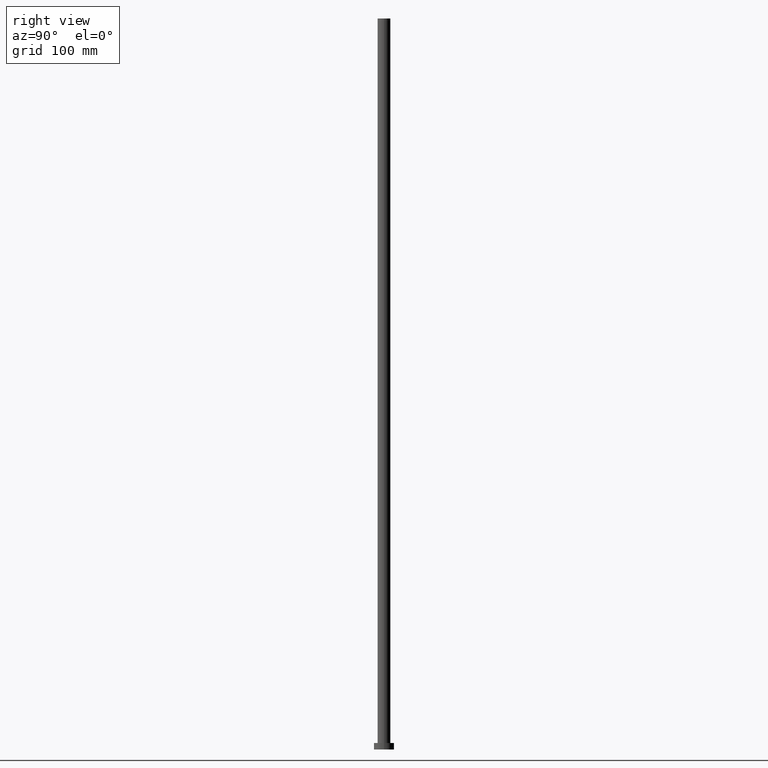
[diagram: clean part render]
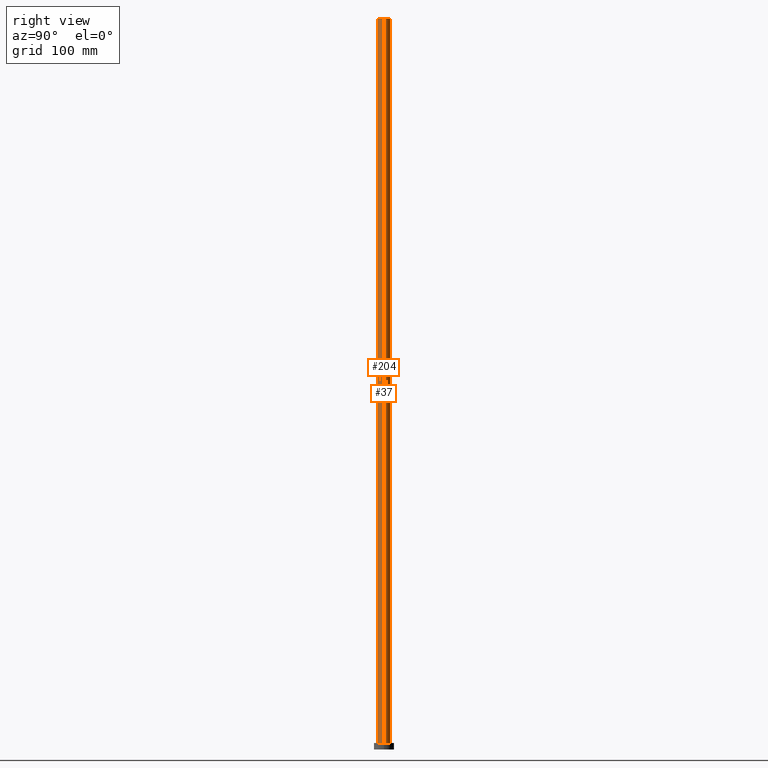
[diagram: same view with one multi-face feature highlighted, each face labeled with its STEP entity id]
A machine part, right view. The highlighted faces form ONE feature: a constant-radius fillet chain: 2 tangent blend faces with common blend radius 7 mm. The faces share edges in the B-rep.
Their STEP definitions:
[1] entity #37 (Cylinder):
#11 = FACE_OUTER_BOUND ( 'NONE', #71, .T. ) ;
#20 = CARTESIAN_POINT ( 'NONE',  ( -7.000000000000000888, 0.000000000000000000, 800.0000000000000000 ) ) ;
#24 = ORIENTED_EDGE ( 'NONE', *, *, #101, .F. ) ;
#29 = DIRECTION ( 'NONE',  ( -0.000000000000000000, -0.000000000000000000, -1.000000000000000000 ) ) ;
#30 = AXIS2_PLACEMENT_3D ( 'NONE', #215, #112, #32 ) ;
#32 = DIRECTION ( 'NONE',  ( -1.000000000000000000, 0.000000000000000000, 0.000000000000000000 ) ) ;
#34 = ORIENTED_EDGE ( 'NONE', *, *, #178, .F. ) ;
#37 = ADVANCED_FACE ( 'NONE', ( #11 ), #212, .T. ) ;
#38 = DIRECTION ( 'NONE',  ( 1.000000000000000000, 0.000000000000000000, 0.000000000000000000 ) ) ;
#53 = VERTEX_POINT ( 'NONE', #113 ) ;
#66 = CIRCLE ( 'NONE', #161, 7.000000000000000888 ) ;
#69 = CIRCLE ( 'NONE', #213, 7.000000000000000888 ) ;
#71 = EDGE_LOOP ( 'NONE', ( #34, #199, #253, #24 ) ) ;
#76 = LINE ( 'NONE', #163, #119 ) ;
#93 = CARTESIAN_POINT ( 'NONE',  ( 7.000000000000000888, 8.572527594031474176E-16, 7.000000000000000000 ) ) ;
#101 = EDGE_CURVE ( 'NONE', #235, #197, #152, .T. ) ;
#112 = DIRECTION ( 'NONE',  ( -0.000000000000000000, -0.000000000000000000, -1.000000000000000000 ) ) ;
#113 = CARTESIAN_POINT ( 'NONE',  ( 7.000000000000000888, 8.572527594031474176E-16, 800.0000000000000000 ) ) ;
#118 = DIRECTION ( 'NONE',  ( 0.000000000000000000, 0.000000000000000000, 1.000000000000000000 ) ) ;
#119 = VECTOR ( 'NONE', #159, 1000.000000000000000 ) ;
#131 = CARTESIAN_POINT ( 'NONE',  ( -7.000000000000000888, 0.000000000000000000, 800.0000000000000000 ) ) ;
#143 = CARTESIAN_POINT ( 'NONE',  ( -7.000000000000000888, 0.000000000000000000, 7.000000000000000000 ) ) ;
#152 = LINE ( 'NONE', #131, #191 ) ;
#153 = EDGE_CURVE ( 'NONE', #154, #197, #66, .T. ) ;
#154 = VERTEX_POINT ( 'NONE', #93 ) ;
#159 = DIRECTION ( 'NONE',  ( -0.000000000000000000, -0.000000000000000000, -1.000000000000000000 ) ) ;
#161 = AXIS2_PLACEMENT_3D ( 'NONE', #162, #221, #183 ) ;
#162 = CARTESIAN_POINT ( 'NONE',  ( 0.000000000000000000, 0.000000000000000000, 7.000000000000000000 ) ) ;
#163 = CARTESIAN_POINT ( 'NONE',  ( 7.000000000000000888, 8.572527594031474176E-16, 800.0000000000000000 ) ) ;
#178 = EDGE_CURVE ( 'NONE', #53, #235, #69, .T. ) ;
#183 = DIRECTION ( 'NONE',  ( 1.000000000000000000, 0.000000000000000000, 0.000000000000000000 ) ) ;
#191 = VECTOR ( 'NONE', #29, 1000.000000000000000 ) ;
#197 = VERTEX_POINT ( 'NONE', #143 ) ;
#199 = ORIENTED_EDGE ( 'NONE', *, *, #232, .T. ) ;
#212 = CYLINDRICAL_SURFACE ( 'NONE', #30, 7.000000000000000888 ) ;
#213 = AXIS2_PLACEMENT_3D ( 'NONE', #223, #118, #38 ) ;
#215 = CARTESIAN_POINT ( 'NONE',  ( 0.000000000000000000, 0.000000000000000000, 800.0000000000000000 ) ) ;
#221 = DIRECTION ( 'NONE',  ( 0.000000000000000000, 0.000000000000000000, 1.000000000000000000 ) ) ;
#223 = CARTESIAN_POINT ( 'NONE',  ( 0.000000000000000000, 0.000000000000000000, 800.0000000000000000 ) ) ;
#232 = EDGE_CURVE ( 'NONE', #53, #154, #76, .T. ) ;
#235 = VERTEX_POINT ( 'NONE', #20 ) ;
#253 = ORIENTED_EDGE ( 'NONE', *, *, #153, .T. ) ;
[2] entity #204 (Cylinder):
#3 = DIRECTION ( 'NONE',  ( -1.000000000000000000, 0.000000000000000000, 0.000000000000000000 ) ) ;
#10 = ORIENTED_EDGE ( 'NONE', *, *, #101, .T. ) ;
#15 = DIRECTION ( 'NONE',  ( 1.000000000000000000, 0.000000000000000000, 0.000000000000000000 ) ) ;
#20 = CARTESIAN_POINT ( 'NONE',  ( -7.000000000000000888, 0.000000000000000000, 800.0000000000000000 ) ) ;
#29 = DIRECTION ( 'NONE',  ( -0.000000000000000000, -0.000000000000000000, -1.000000000000000000 ) ) ;
#35 = CIRCLE ( 'NONE', #114, 7.000000000000000888 ) ;
#41 = ORIENTED_EDGE ( 'NONE', *, *, #85, .F. ) ;
#47 = EDGE_CURVE ( 'NONE', #197, #154, #35, .T. ) ;
#52 = CIRCLE ( 'NONE', #79, 7.000000000000000888 ) ;
#53 = VERTEX_POINT ( 'NONE', #113 ) ;
#70 = DIRECTION ( 'NONE',  ( 0.000000000000000000, 0.000000000000000000, 1.000000000000000000 ) ) ;
#72 = DIRECTION ( 'NONE',  ( 1.000000000000000000, 0.000000000000000000, 0.000000000000000000 ) ) ;
#76 = LINE ( 'NONE', #163, #119 ) ;
#77 = AXIS2_PLACEMENT_3D ( 'NONE', #122, #220, #3 ) ;
#79 = AXIS2_PLACEMENT_3D ( 'NONE', #89, #70, #15 ) ;
#84 = CARTESIAN_POINT ( 'NONE',  ( 0.000000000000000000, 0.000000000000000000, 7.000000000000000000 ) ) ;
#85 = EDGE_CURVE ( 'NONE', #235, #53, #52, .T. ) ;
#89 = CARTESIAN_POINT ( 'NONE',  ( 0.000000000000000000, 0.000000000000000000, 800.0000000000000000 ) ) ;
#93 = CARTESIAN_POINT ( 'NONE',  ( 7.000000000000000888, 8.572527594031474176E-16, 7.000000000000000000 ) ) ;
#101 = EDGE_CURVE ( 'NONE', #235, #197, #152, .T. ) ;
#110 = ORIENTED_EDGE ( 'NONE', *, *, #47, .T. ) ;
#113 = CARTESIAN_POINT ( 'NONE',  ( 7.000000000000000888, 8.572527594031474176E-16, 800.0000000000000000 ) ) ;
#114 = AXIS2_PLACEMENT_3D ( 'NONE', #84, #175, #72 ) ;
#119 = VECTOR ( 'NONE', #159, 1000.000000000000000 ) ;
#122 = CARTESIAN_POINT ( 'NONE',  ( 0.000000000000000000, 0.000000000000000000, 800.0000000000000000 ) ) ;
#131 = CARTESIAN_POINT ( 'NONE',  ( -7.000000000000000888, 0.000000000000000000, 800.0000000000000000 ) ) ;
#138 = CYLINDRICAL_SURFACE ( 'NONE', #77, 7.000000000000000888 ) ;
#143 = CARTESIAN_POINT ( 'NONE',  ( -7.000000000000000888, 0.000000000000000000, 7.000000000000000000 ) ) ;
#152 = LINE ( 'NONE', #131, #191 ) ;
#154 = VERTEX_POINT ( 'NONE', #93 ) ;
#159 = DIRECTION ( 'NONE',  ( -0.000000000000000000, -0.000000000000000000, -1.000000000000000000 ) ) ;
#163 = CARTESIAN_POINT ( 'NONE',  ( 7.000000000000000888, 8.572527594031474176E-16, 800.0000000000000000 ) ) ;
#175 = DIRECTION ( 'NONE',  ( 0.000000000000000000, 0.000000000000000000, 1.000000000000000000 ) ) ;
#181 = FACE_OUTER_BOUND ( 'NONE', #227, .T. ) ;
#191 = VECTOR ( 'NONE', #29, 1000.000000000000000 ) ;
#197 = VERTEX_POINT ( 'NONE', #143 ) ;
#204 = ADVANCED_FACE ( 'NONE', ( #181 ), #138, .T. ) ;
#220 = DIRECTION ( 'NONE',  ( -0.000000000000000000, -0.000000000000000000, -1.000000000000000000 ) ) ;
#227 = EDGE_LOOP ( 'NONE', ( #229, #41, #10, #110 ) ) ;
#229 = ORIENTED_EDGE ( 'NONE', *, *, #232, .F. ) ;
#232 = EDGE_CURVE ( 'NONE', #53, #154, #76, .T. ) ;
#235 = VERTEX_POINT ( 'NONE', #20 ) ;